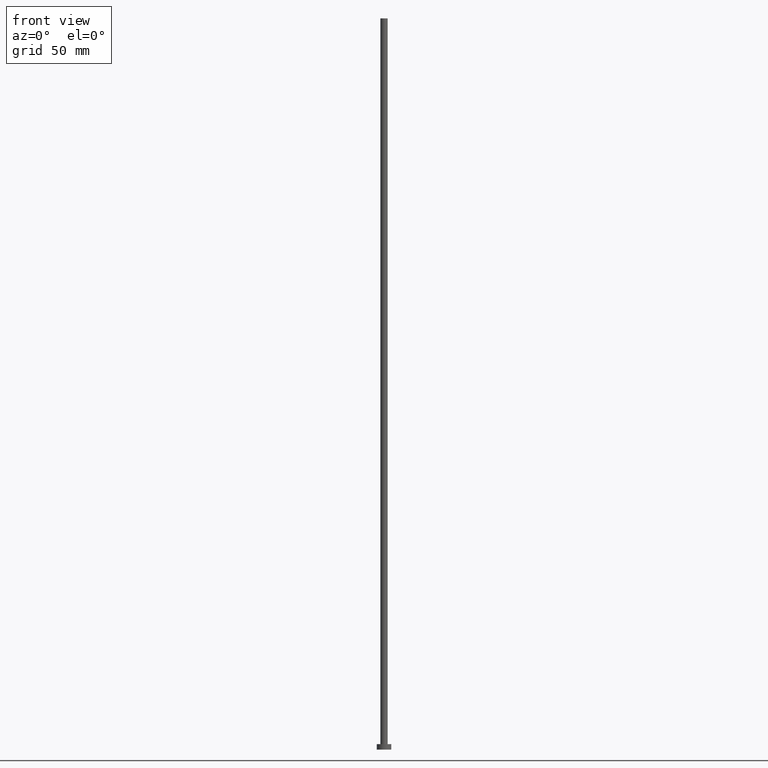
[diagram: clean part render]
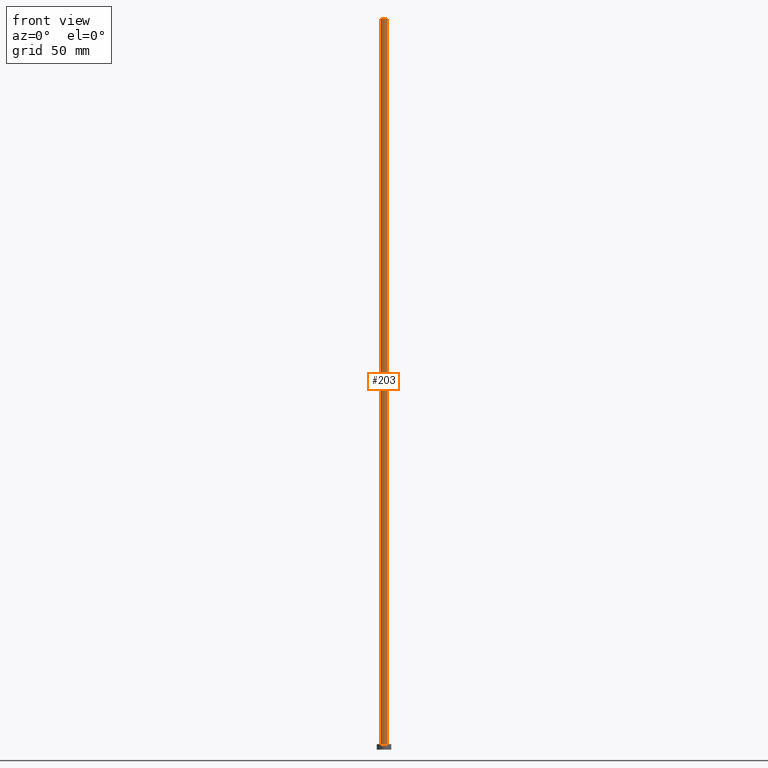
[diagram: same view with one face highlighted and labeled with its STEP entity id]
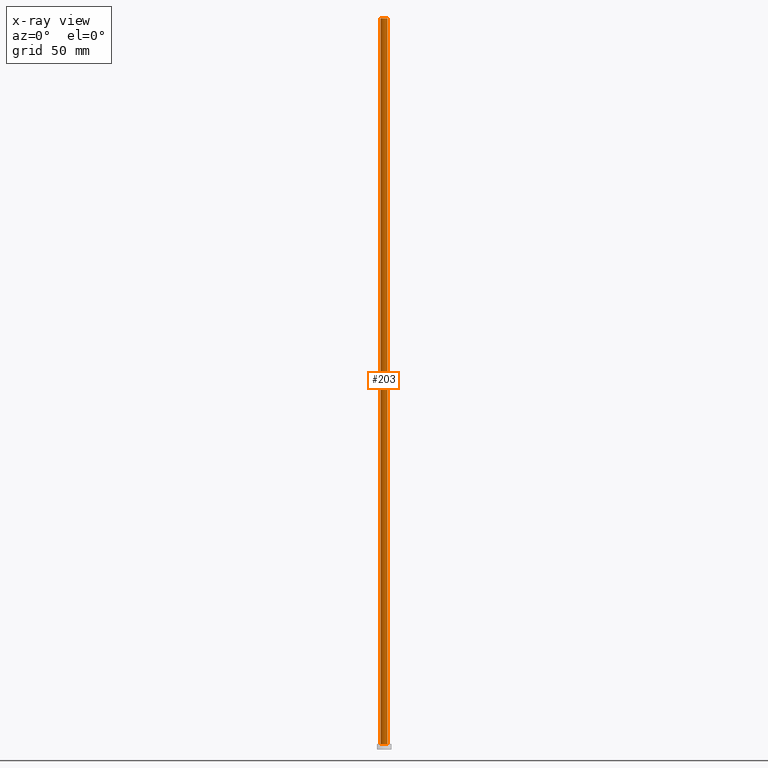
[diagram: x-ray of the same camera — body ghosted, the highlighted face saturated]
A machine part, front view. The second image highlights one B-rep face of the part: STEP entity #203.
The next image is the same camera in x-ray: the body ghosted, the highlighted face saturated — about 0% of this face is hidden behind the body in this view.
In plain terms, the highlighted cylindrical surface (edge-blend (fillet) strip) has radius 2 mm, axis along (-0, -0, -1).
Its self-contained STEP definition (entity closure, byte-faithful):
#6 = DIRECTION ( 'NONE',  ( 1.000000000000000000, 0.000000000000000000, 0.000000000000000000 ) ) ;
#7 = LINE ( 'NONE', #207, #130 ) ;
#16 = CARTESIAN_POINT ( 'NONE',  ( 0.000000000000000000, 0.000000000000000000, 400.0000000000000000 ) ) ;
#24 = VERTEX_POINT ( 'NONE', #74 ) ;
#25 = AXIS2_PLACEMENT_3D ( 'NONE', #16, #199, #6 ) ;
#39 = CARTESIAN_POINT ( 'NONE',  ( 2.000000000000000000, 2.449293598294706414E-16, 3.000000000000000000 ) ) ;
#54 = DIRECTION ( 'NONE',  ( -1.000000000000000000, 0.000000000000000000, 0.000000000000000000 ) ) ;
#61 = VERTEX_POINT ( 'NONE', #39 ) ;
#66 = ORIENTED_EDGE ( 'NONE', *, *, #175, .F. ) ;
#67 = VECTOR ( 'NONE', #91, 1000.000000000000000 ) ;
#70 = CARTESIAN_POINT ( 'NONE',  ( -2.000000000000000000, 0.000000000000000000, 400.0000000000000000 ) ) ;
#74 = CARTESIAN_POINT ( 'NONE',  ( 2.000000000000000000, 2.449293598294706414E-16, 400.0000000000000000 ) ) ;
#91 = DIRECTION ( 'NONE',  ( -0.000000000000000000, -0.000000000000000000, -1.000000000000000000 ) ) ;
#92 = CIRCLE ( 'NONE', #164, 2.000000000000000000 ) ;
#112 = ORIENTED_EDGE ( 'NONE', *, *, #161, .T. ) ;
#114 = DIRECTION ( 'NONE',  ( -0.000000000000000000, -0.000000000000000000, -1.000000000000000000 ) ) ;
#120 = FACE_OUTER_BOUND ( 'NONE', #250, .T. ) ;
#130 = VECTOR ( 'NONE', #145, 1000.000000000000000 ) ;
#131 = ORIENTED_EDGE ( 'NONE', *, *, #140, .F. ) ;
#133 = CARTESIAN_POINT ( 'NONE',  ( -2.000000000000000000, 0.000000000000000000, 3.000000000000000000 ) ) ;
#138 = CARTESIAN_POINT ( 'NONE',  ( 0.000000000000000000, 0.000000000000000000, 3.000000000000000000 ) ) ;
#140 = EDGE_CURVE ( 'NONE', #201, #24, #205, .T. ) ;
#144 = EDGE_CURVE ( 'NONE', #163, #61, #92, .T. ) ;
#145 = DIRECTION ( 'NONE',  ( -0.000000000000000000, -0.000000000000000000, -1.000000000000000000 ) ) ;
#161 = EDGE_CURVE ( 'NONE', #201, #163, #7, .T. ) ;
#163 = VERTEX_POINT ( 'NONE', #133 ) ;
#164 = AXIS2_PLACEMENT_3D ( 'NONE', #138, #183, #220 ) ;
#166 = ORIENTED_EDGE ( 'NONE', *, *, #144, .T. ) ;
#168 = LINE ( 'NONE', #252, #67 ) ;
#175 = EDGE_CURVE ( 'NONE', #24, #61, #168, .T. ) ;
#183 = DIRECTION ( 'NONE',  ( 0.000000000000000000, 0.000000000000000000, 1.000000000000000000 ) ) ;
#199 = DIRECTION ( 'NONE',  ( 0.000000000000000000, 0.000000000000000000, 1.000000000000000000 ) ) ;
#201 = VERTEX_POINT ( 'NONE', #70 ) ;
#203 = ADVANCED_FACE ( 'NONE', ( #120 ), #255, .T. ) ;
#205 = CIRCLE ( 'NONE', #25, 2.000000000000000000 ) ;
#207 = CARTESIAN_POINT ( 'NONE',  ( -2.000000000000000000, 0.000000000000000000, 400.0000000000000000 ) ) ;
#212 = CARTESIAN_POINT ( 'NONE',  ( 0.000000000000000000, 0.000000000000000000, 400.0000000000000000 ) ) ;
#214 = AXIS2_PLACEMENT_3D ( 'NONE', #212, #114, #54 ) ;
#220 = DIRECTION ( 'NONE',  ( 1.000000000000000000, 0.000000000000000000, 0.000000000000000000 ) ) ;
#250 = EDGE_LOOP ( 'NONE', ( #66, #131, #112, #166 ) ) ;
#252 = CARTESIAN_POINT ( 'NONE',  ( 2.000000000000000000, 2.449293598294706414E-16, 400.0000000000000000 ) ) ;
#255 = CYLINDRICAL_SURFACE ( 'NONE', #214, 2.000000000000000000 ) ;